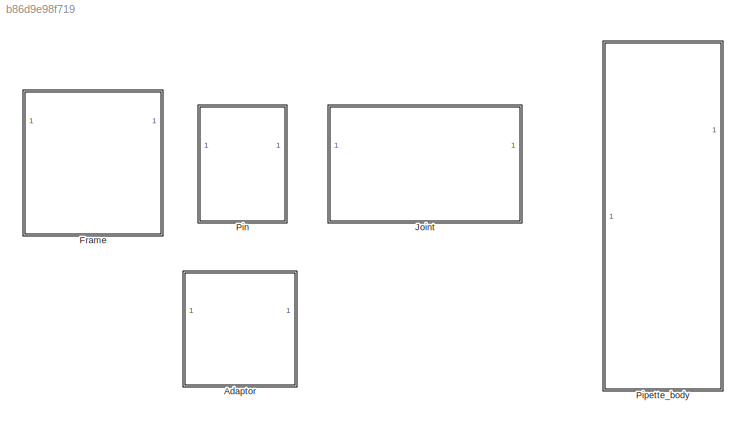
MODEL slx_b86d9e98f719
KIND library
CONFIG AbsTol = auto
CONFIG EnableMultiTasking = off
CONFIG FixedStep = auto
CONFIG MaxStep = auto
CONFIG MinStep = auto
CONFIG RelTol = 1e-3
CONFIG SampleTimeConstraint = Unconstrained
CONFIG SolverName = VariableStepAuto
CONFIG StartTime = 0.0
CONFIG StopTime = 10.0
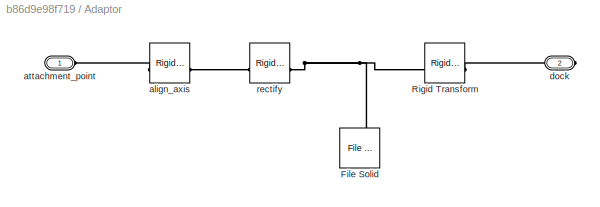
BLOCK [SubSystem] Adaptor
  PortSchema = {"entries":[{"content":{"sides":[{"content":{},"type":"ConnectorPlacement.EquallySpacedRectSide","uuid":"dd4ab5e8-8568-41dd-97a2-96a08f16f04e"},{"content":{"side":"RIGHT"},"type":"ConnectorPlacement.EquallySpacedRectSide","uuid":"fe2a8fd4-f304-4d05-ad5d-176ad91c4ad1"},{"content":{"connectorIds":["LConn1"],"side":"TOP"},"type":"ConnectorPlacement.EquallySpacedRectSide","uuid":"2c705af2-a6c4-4c81-ae...<+354ch>
BLOCK [Reference] Adaptor/File Solid  REF=sm_lib/Body Elements/File Solid
  NameLocation = right
  SourceBlock = sm_lib/Body Elements/File Solid
  SourceType = File Solid
BLOCK [Reference] Adaptor/Rigid Transform  REF=sm_lib/Frames and
Transforms/Rigid
Transform
  SourceBlock = sm_lib/Frames and\nTransforms/Rigid\nTransform
  SourceType = Rigid\nTransform
BLOCK [Reference] Adaptor/align_axis  REF=sm_lib/Frames and
Transforms/Rigid
Transform
  SourceBlock = sm_lib/Frames and\nTransforms/Rigid\nTransform
  SourceType = Rigid\nTransform
BLOCK [PMIOPort] Adaptor/attachment_point
  Side = Left
BLOCK [PMIOPort] Adaptor/dock
  Port = 2
  Side = Right
BLOCK [Reference] Adaptor/rectify  REF=sm_lib/Frames and
Transforms/Rigid
Transform
  SourceBlock = sm_lib/Frames and\nTransforms/Rigid\nTransform
  SourceType = Rigid\nTransform
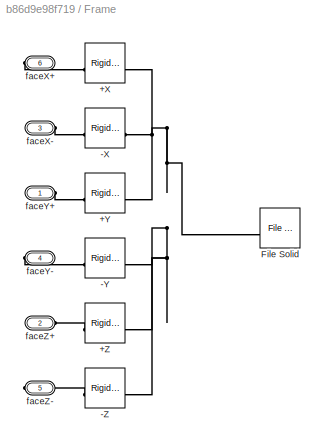
BLOCK [SubSystem] Frame
  PortSchema = {"entries":[{"content":{"sides":[{"content":{"connectorIds":["LConn1"]},"type":"ConnectorPlacement.EquallySpacedRectSide","uuid":"35eb1efd-839a-4843-ad77-3b5adc810ec9"},{"content":{"connectorIds":["RConn1"],"side":"RIGHT"},"type":"ConnectorPlacement.EquallySpacedRectSide","uuid":"5f01883d-206b-448b-904d-ef877e57ab6c"},{"content":{"connectorIds":["LConn2","LConn3"],"side":"TOP"},"type":"ConnectorPl...<+423ch>
BLOCK [Reference] Frame/+X  REF=sm_lib/Frames and
Transforms/Rigid
Transform
  SourceBlock = sm_lib/Frames and\nTransforms/Rigid\nTransform
  SourceType = Rigid\nTransform
BLOCK [Reference] Frame/+Y  REF=sm_lib/Frames and
Transforms/Rigid
Transform
  SourceBlock = sm_lib/Frames and\nTransforms/Rigid\nTransform
  SourceType = Rigid\nTransform
BLOCK [Reference] Frame/+Z  REF=sm_lib/Frames and
Transforms/Rigid
Transform
  SourceBlock = sm_lib/Frames and\nTransforms/Rigid\nTransform
  SourceType = Rigid\nTransform
BLOCK [Reference] Frame/-X  REF=sm_lib/Frames and
Transforms/Rigid
Transform
  SourceBlock = sm_lib/Frames and\nTransforms/Rigid\nTransform
  SourceType = Rigid\nTransform
BLOCK [Reference] Frame/-Y  REF=sm_lib/Frames and
Transforms/Rigid
Transform
  SourceBlock = sm_lib/Frames and\nTransforms/Rigid\nTransform
  SourceType = Rigid\nTransform
BLOCK [Reference] Frame/-Z  REF=sm_lib/Frames and
Transforms/Rigid
Transform
  SourceBlock = sm_lib/Frames and\nTransforms/Rigid\nTransform
  SourceType = Rigid\nTransform
BLOCK [Reference] Frame/File Solid  REF=sm_lib/Body Elements/File Solid
  SourceBlock = sm_lib/Body Elements/File Solid
  SourceType = File Solid
BLOCK [PMIOPort] Frame/faceX+
  Port = 6
  Side = Right
BLOCK [PMIOPort] Frame/faceX-
  Port = 3
  Side = Left
BLOCK [PMIOPort] Frame/faceY+
  Side = Left
BLOCK [PMIOPort] Frame/faceY-
  Port = 4
  Side = Right
BLOCK [PMIOPort] Frame/faceZ+
  Port = 2
  Side = Left
BLOCK [PMIOPort] Frame/faceZ-
  Port = 5
  Side = Right
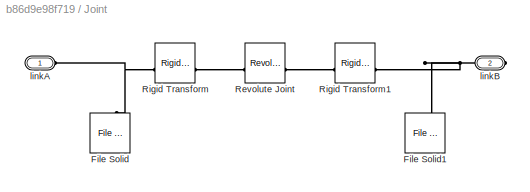
BLOCK [SubSystem] Joint
BLOCK [Reference] Joint/File Solid  REF=sm_lib/Body Elements/File Solid
  NameLocation = right
  SourceBlock = sm_lib/Body Elements/File Solid
  SourceType = File Solid
BLOCK [Reference] Joint/File Solid1  REF=sm_lib/Body Elements/File Solid
  NameLocation = right
  SourceBlock = sm_lib/Body Elements/File Solid
  SourceType = File Solid
BLOCK [Reference] Joint/Revolute Joint  REF=sm_lib/Joints/Revolute Joint
  SourceBlock = sm_lib/Joints/Revolute Joint
  SourceType = Revolute Joint
BLOCK [Reference] Joint/Rigid Transform  REF=sm_lib/Frames and
Transforms/Rigid
Transform
  SourceBlock = sm_lib/Frames and\nTransforms/Rigid\nTransform
  SourceType = Rigid\nTransform
BLOCK [Reference] Joint/Rigid Transform1  REF=sm_lib/Frames and
Transforms/Rigid
Transform
  SourceBlock = sm_lib/Frames and\nTransforms/Rigid\nTransform
  SourceType = Rigid\nTransform
BLOCK [PMIOPort] Joint/linkA
  Side = Left
BLOCK [PMIOPort] Joint/linkB
  Port = 2
  Side = Right
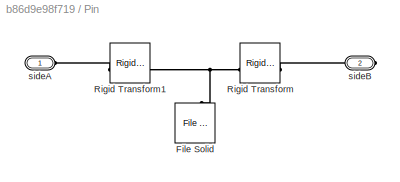
BLOCK [SubSystem] Pin
BLOCK [Reference] Pin/File Solid  REF=sm_lib/Body Elements/File Solid
  NameLocation = right
  SourceBlock = sm_lib/Body Elements/File Solid
  SourceType = File Solid
BLOCK [Reference] Pin/Rigid Transform  REF=sm_lib/Frames and
Transforms/Rigid
Transform
  SourceBlock = sm_lib/Frames and\nTransforms/Rigid\nTransform
  SourceType = Rigid\nTransform
BLOCK [Reference] Pin/Rigid Transform1  REF=sm_lib/Frames and
Transforms/Rigid
Transform
  SourceBlock = sm_lib/Frames and\nTransforms/Rigid\nTransform
  SourceType = Rigid\nTransform
BLOCK [PMIOPort] Pin/sideA
  Side = Left
BLOCK [PMIOPort] Pin/sideB
  Port = 2
  Side = Right
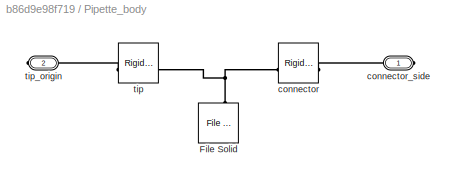
BLOCK [SubSystem] Pipette_body
  PortSchema = {"entries":[{"content":{"sides":[{"content":{},"type":"ConnectorPlacement.EquallySpacedRectSide","uuid":"78253204-a828-46eb-9a49-9b17d63d6513"},{"content":{"connectorIds":["RConn1"],"side":"RIGHT"},"type":"ConnectorPlacement.EquallySpacedRectSide","uuid":"fc9d6d80-1b8f-4b97-9f86-69990114b793"},{"content":{"side":"TOP"},"type":"ConnectorPlacement.EquallySpacedRectSide","uuid":"ec477e64-ef29-4307-b6...<+354ch>
BLOCK [Reference] Pipette_body/File Solid  REF=sm_lib/Body Elements/File Solid
  NameLocation = left
  SourceBlock = sm_lib/Body Elements/File Solid
  SourceType = File Solid
BLOCK [Reference] Pipette_body/connector  REF=sm_lib/Frames and
Transforms/Rigid
Transform
  SourceBlock = sm_lib/Frames and\nTransforms/Rigid\nTransform
  SourceType = Rigid\nTransform
BLOCK [PMIOPort] Pipette_body/connector_side
  Side = Right
BLOCK [Reference] Pipette_body/tip  REF=sm_lib/Frames and
Transforms/Rigid
Transform
  SourceBlock = sm_lib/Frames and\nTransforms/Rigid\nTransform
  SourceType = Rigid\nTransform
BLOCK [PMIOPort] Pipette_body/tip_origin
  Port = 2
  Side = Right
PNET net1: Adaptor/File Solid:RConn1 -- Adaptor/Rigid Transform:LConn1 -- Adaptor/rectify:LConn1
PLINE Adaptor/Rigid Transform:RConn1 -- Adaptor/dock:RConn1
PLINE Adaptor/align_axis:LConn1 -- Adaptor/rectify:RConn1
PLINE Adaptor/align_axis:RConn1 -- Adaptor/attachment_point:RConn1
PNET net2: Frame/+X:LConn1 -- Frame/+Y:LConn1 -- Frame/+Z:LConn1 -- Frame/-X:LConn1 -- Frame/-Y:LConn1 -- Frame/-Z:LConn1 -- Frame/File Solid:RConn1
PLINE Frame/+X:RConn1 -- Frame/faceX+:RConn1
PLINE Frame/+Y:RConn1 -- Frame/faceY+:RConn1
PLINE Frame/+Z:RConn1 -- Frame/faceZ+:RConn1
PLINE Frame/-X:RConn1 -- Frame/faceX-:RConn1
PLINE Frame/-Y:RConn1 -- Frame/faceY-:RConn1
PLINE Frame/-Z:RConn1 -- Frame/faceZ-:RConn1
PNET net3: Joint/File Solid1:LConn1 -- Joint/Rigid Transform1:LConn1 -- Joint/linkB:RConn1
PNET net4: Joint/File Solid:LConn1 -- Joint/Rigid Transform:LConn1 -- Joint/linkA:RConn1
PLINE Joint/Revolute Joint:LConn1 -- Joint/Rigid Transform:RConn1
PLINE Joint/Revolute Joint:RConn1 -- Joint/Rigid Transform1:RConn1
PNET net5: Pin/File Solid:LConn1 -- Pin/Rigid Transform1:LConn1 -- Pin/Rigid Transform:LConn1
PLINE Pin/Rigid Transform1:RConn1 -- Pin/sideA:RConn1
PLINE Pin/Rigid Transform:RConn1 -- Pin/sideB:RConn1
PNET net6: Pipette_body/File Solid:LConn1 -- Pipette_body/connector:LConn1 -- Pipette_body/tip:LConn1
PLINE Pipette_body/connector:RConn1 -- Pipette_body/connector_side:RConn1
PLINE Pipette_body/tip:RConn1 -- Pipette_body/tip_origin:RConn1
note: PNET lines group multi-terminal physical nets as a canonical sorted terminal list (undirected conserving connections); 2-terminal nets keep the pairwise PLINE form
